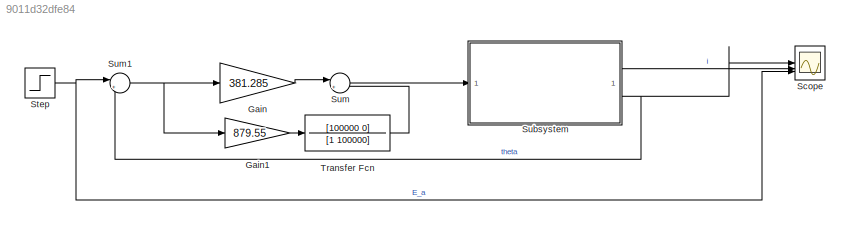
MODEL slx_9011d32dfe84
KIND model
CONFIG AbsTol = auto
CONFIG EnableMultiTasking = off
CONFIG FixedStep = auto
CONFIG MaxStep = auto
CONFIG MinStep = auto
CONFIG RelTol = 1e-3
CONFIG SampleTimeConstraint = Unconstrained
CONFIG SolverName = VariableStepAuto
CONFIG StartTime = 0.0
CONFIG StopTime = 20
BLOCK [Gain] Gain
  Gain = 381.285
BLOCK [Gain] Gain1
  Gain = 879.55
BLOCK [Scope] Scope
  Floating = off
  NumInputPorts = 3
  ScopeSpecificationString = Simulink.scopes.TimeScopeBlockCfg('CurrentConfiguration', extmgr.ConfigurationSet(extmgr.Configuration('Core','General UI',true),extmgr.Configuration('Core','Source UI',true),extmgr.Configuration('Sources','WiredSimulink',true),extmgr.Configuration('Visuals','Time Domain',true,'SerializedDisplays',{struct('MinYLimReal','-0.13237','MaxYLimReal','1.19133','YLabelReal','','MinYLimMag','0.00000','MaxY...<+2680ch>
BLOCK [Step] Step
  SampleTime = 0
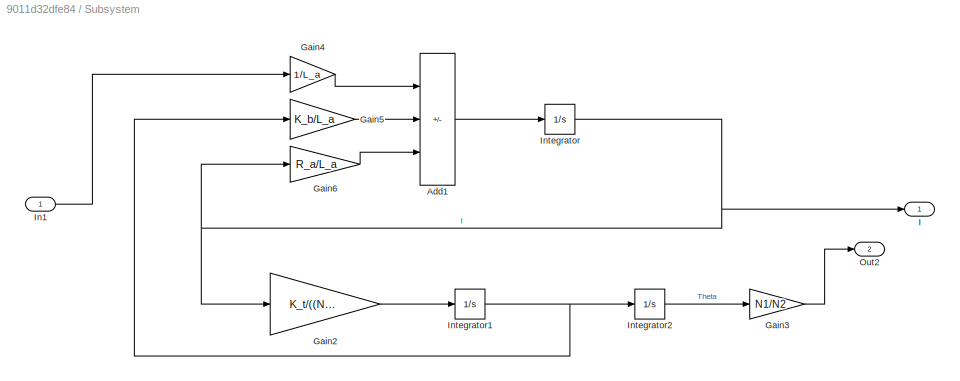
BLOCK [SubSystem] Subsystem
BLOCK [Sum] Subsystem/Add1
  IconShape = rectangular
  Inputs = +--
BLOCK [Gain] Subsystem/Gain2
  Gain = K_t/((N1/N2)*J_L)
BLOCK [Gain] Subsystem/Gain3
  Gain = N1/N2
BLOCK [Gain] Subsystem/Gain4
  Gain = 1/L_a
BLOCK [Gain] Subsystem/Gain5
  Gain = K_b/L_a
BLOCK [Gain] Subsystem/Gain6
  Gain = R_a/L_a
BLOCK [Outport] Subsystem/I
BLOCK [Inport] Subsystem/In1
BLOCK [Integrator] Subsystem/Integrator
BLOCK [Integrator] Subsystem/Integrator1
BLOCK [Integrator] Subsystem/Integrator2
BLOCK [Outport] Subsystem/Out2
  Port = 2
BLOCK [Sum] Sum
  Inputs = |++
  NameLocation = top
BLOCK [Sum] Sum1
  Inputs = |+-
BLOCK [TransferFcn] Transfer Fcn
  Denominator = [1 100000]
  Numerator = [100000 0]
LINE Gain1:1 -> Transfer Fcn:1
LINE Gain:1 -> Sum:1
NET Step:1 -> Scope:3, Sum1:1
LINE Subsystem/Add1:1 -> Subsystem/Integrator:1
LINE Subsystem/Gain2:1 -> Subsystem/Integrator1:1
LINE Subsystem/Gain3:1 -> Subsystem/Out2:1
LINE Subsystem/Gain4:1 -> Subsystem/Add1:1
LINE Subsystem/Gain5:1 -> Subsystem/Add1:2
LINE Subsystem/Gain6:1 -> Subsystem/Add1:3
LINE Subsystem/In1:1 -> Subsystem/Gain4:1
NET Subsystem/Integrator1:1 -> Subsystem/Gain5:1, Subsystem/Integrator2:1
LINE Subsystem/Integrator2:1 -> Subsystem/Gain3:1
NET Subsystem/Integrator:1 -> Subsystem/Gain2:1, Subsystem/Gain6:1, Subsystem/I:1
LINE Subsystem:1 -> Scope:2
NET Subsystem:2 -> Scope:1, Sum1:2
NET Sum1:1 -> Gain1:1, Gain:1
LINE Sum:1 -> Subsystem:1
LINE Transfer Fcn:1 -> Sum:2
note: NET lines group one-source signal fan-out (src -> all destinations, sorted); 1:1 wires keep LINE
